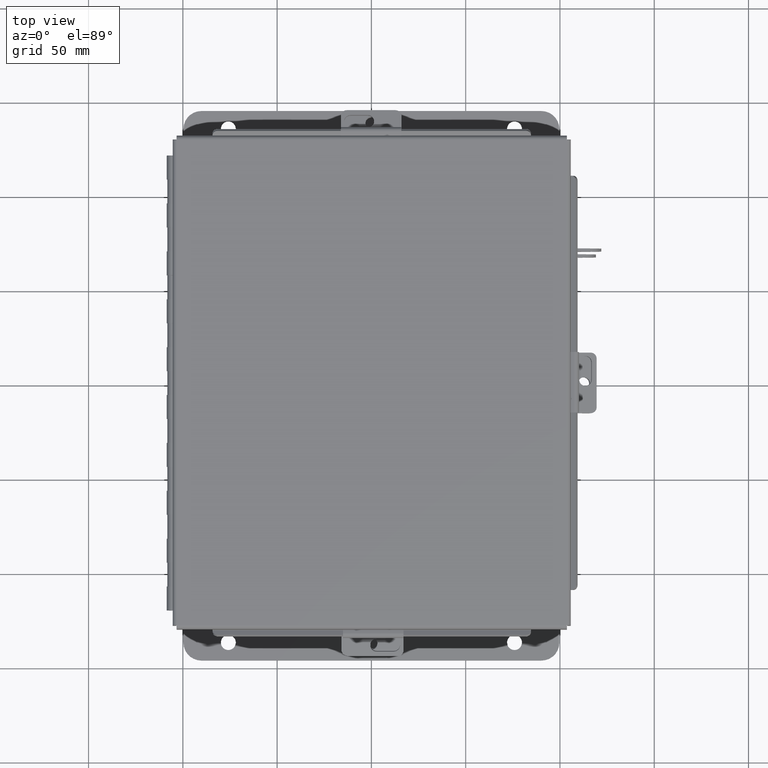
[diagram: clean part render]
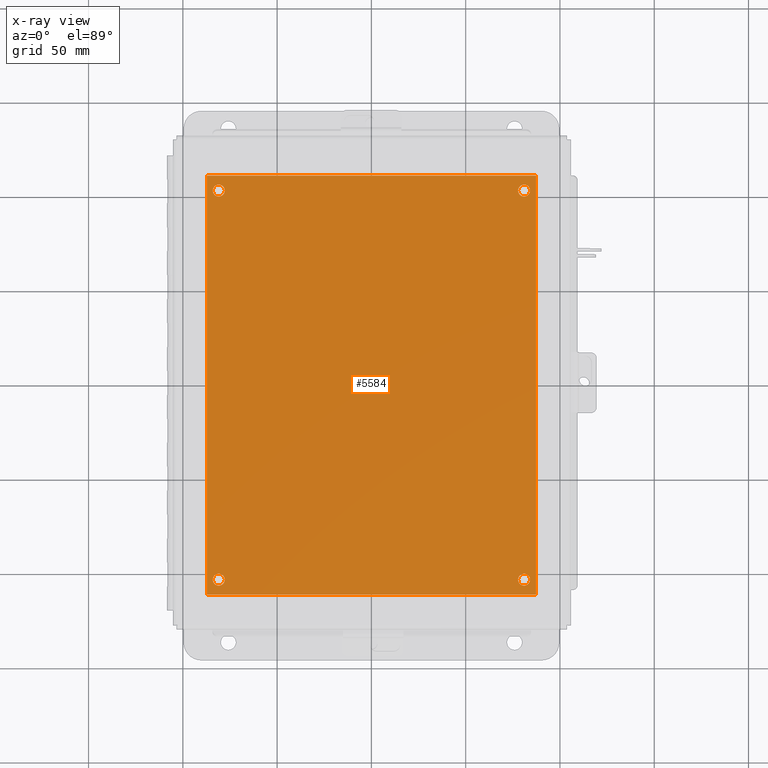
[diagram: x-ray — body ghosted, one internal face saturated and labeled with its STEP entity id]
A machine part, top view, then the same camera in x-ray: the body is ghosted and one INTERNAL B-rep face — a face not visible from any outside direction — is saturated and labeled: STEP entity #5584.
In plain terms, the highlighted planar face has unit normal (0, 0, -1).
Its self-contained STEP definition (entity closure, byte-faithful):
#4 = CARTESIAN_POINT ( 'NONE',  ( 6.750000000000003600, 0.3120000000000020500, -0.07470000000000003000 ) ) ;
#35 = LINE ( 'NONE', #9192, #6841 ) ;
#161 = EDGE_LOOP ( 'NONE', ( #391, #1030 ) ) ;
#181 = ORIENTED_EDGE ( 'NONE', *, *, #4971, .T. ) ;
#237 = ORIENTED_EDGE ( 'NONE', *, *, #12358, .F. ) ;
#391 = ORIENTED_EDGE ( 'NONE', *, *, #5297, .T. ) ;
#422 = DIRECTION ( 'NONE',  ( -0.0000000000000000000, -0.0000000000000000000, 1.000000000000000000 ) ) ;
#569 = DIRECTION ( 'NONE',  ( -1.000000000000000000, 0.0000000000000000000, 0.0000000000000000000 ) ) ;
#661 = LINE ( 'NONE', #6732, #10455 ) ;
#827 = AXIS2_PLACEMENT_3D ( 'NONE', #11289, #3636, #12570 ) ;
#972 = CARTESIAN_POINT ( 'NONE',  ( 6.625000000000001800, 8.438000000000000600, -0.07470000000000003000 ) ) ;
#990 = AXIS2_PLACEMENT_3D ( 'NONE', #11428, #3753, #12701 ) ;
#1002 = LINE ( 'NONE', #11313, #14150 ) ;
#1030 = ORIENTED_EDGE ( 'NONE', *, *, #5215, .T. ) ;
#1213 = VERTEX_POINT ( 'NONE', #13694 ) ;
#1231 = EDGE_CURVE ( 'NONE', #13364, #14865, #16474, .T. ) ;
#1470 = ORIENTED_EDGE ( 'NONE', *, *, #1231, .T. ) ;
#1525 = CARTESIAN_POINT ( 'NONE',  ( 0.0000000000000000000, 0.0000000000000000000, -0.07470000000000003000 ) ) ;
#1537 = DIRECTION ( 'NONE',  ( -1.000000000000000000, -0.0000000000000000000, -0.0000000000000000000 ) ) ;
#1796 = FACE_OUTER_BOUND ( 'NONE', #14748, .T. ) ;
#2169 = CARTESIAN_POINT ( 'NONE',  ( 6.625000000000002700, 0.3120000000000020500, -0.07470000000000003000 ) ) ;
#2461 = ORIENTED_EDGE ( 'NONE', *, *, #15704, .T. ) ;
#2534 = DIRECTION ( 'NONE',  ( -0.0000000000000000000, -0.0000000000000000000, 1.000000000000000000 ) ) ;
#2571 = CARTESIAN_POINT ( 'NONE',  ( 0.1250000000000003300, 8.437999999999998800, -0.07470000000000003000 ) ) ;
#2604 = LINE ( 'NONE', #14141, #15747 ) ;
#3386 = ORIENTED_EDGE ( 'NONE', *, *, #9667, .T. ) ;
#3439 = DIRECTION ( 'NONE',  ( -1.000000000000000000, 0.0000000000000000000, 0.0000000000000000000 ) ) ;
#3450 = CIRCLE ( 'NONE', #827, 0.1250000000000000600 ) ;
#3474 = PLANE ( 'NONE',  #13881 ) ;
#3636 = DIRECTION ( 'NONE',  ( -0.0000000000000000000, -0.0000000000000000000, 1.000000000000000000 ) ) ;
#3694 = EDGE_CURVE ( 'NONE', #5186, #12785, #13194, .T. ) ;
#3753 = DIRECTION ( 'NONE',  ( -0.0000000000000000000, -0.0000000000000000000, 1.000000000000000000 ) ) ;
#3808 = CARTESIAN_POINT ( 'NONE',  ( 0.2500000000000003300, 8.437999999999998800, -0.07470000000000003000 ) ) ;
#4032 = VERTEX_POINT ( 'NONE', #13508 ) ;
#4351 = CARTESIAN_POINT ( 'NONE',  ( 6.625000000000002700, 0.3120000000000020500, -0.07470000000000003000 ) ) ;
#4971 = EDGE_CURVE ( 'NONE', #14865, #13364, #13182, .T. ) ;
#5085 = DIRECTION ( 'NONE',  ( -1.000000000000000000, 0.0000000000000000000, 0.0000000000000000000 ) ) ;
#5154 = EDGE_CURVE ( 'NONE', #6247, #9313, #1002, .T. ) ;
#5166 = FACE_BOUND ( 'NONE', #161, .T. ) ;
#5186 = VERTEX_POINT ( 'NONE', #11370 ) ;
#5209 = VERTEX_POINT ( 'NONE', #16514 ) ;
#5215 = EDGE_CURVE ( 'NONE', #14579, #5209, #14564, .T. ) ;
#5297 = EDGE_CURVE ( 'NONE', #5209, #14579, #5799, .T. ) ;
#5575 = FACE_BOUND ( 'NONE', #7928, .T. ) ;
#5584 = ADVANCED_FACE ( 'NONE', ( #15740, #11986, #5575, #5166, #1796 ), #3474, .T. ) ;
#5738 = CIRCLE ( 'NONE', #990, 0.1250000000000000600 ) ;
#5769 = DIRECTION ( 'NONE',  ( -0.0000000000000000000, -0.0000000000000000000, 1.000000000000000000 ) ) ;
#5799 = CIRCLE ( 'NONE', #7410, 0.1250000000000000000 ) ;
#5880 = VERTEX_POINT ( 'NONE', #8115 ) ;
#5943 = ORIENTED_EDGE ( 'NONE', *, *, #15326, .T. ) ;
#6247 = VERTEX_POINT ( 'NONE', #6256 ) ;
#6256 = CARTESIAN_POINT ( 'NONE',  ( 0.0000000000000000000, 8.750000000000000000, -0.07470000000000003000 ) ) ;
#6264 = ORIENTED_EDGE ( 'NONE', *, *, #5154, .F. ) ;
#6390 = DIRECTION ( 'NONE',  ( -1.000000000000000000, 0.0000000000000000000, 0.0000000000000000000 ) ) ;
#6505 = ORIENTED_EDGE ( 'NONE', *, *, #9404, .F. ) ;
#6732 = CARTESIAN_POINT ( 'NONE',  ( 6.875000000000000000, 0.0000000000000000000, -0.07470000000000003000 ) ) ;
#6841 = VECTOR ( 'NONE', #1537, 39.37007874015748100 ) ;
#7348 = DIRECTION ( 'NONE',  ( -1.000000000000000000, 0.0000000000000000000, -0.0000000000000000000 ) ) ;
#7402 = EDGE_LOOP ( 'NONE', ( #1470, #181 ) ) ;
#7410 = AXIS2_PLACEMENT_3D ( 'NONE', #8080, #422, #9351 ) ;
#7525 = DIRECTION ( 'NONE',  ( -0.0000000000000000000, -1.000000000000000000, -0.0000000000000000000 ) ) ;
#7552 = EDGE_LOOP ( 'NONE', ( #5943, #3386 ) ) ;
#7928 = EDGE_LOOP ( 'NONE', ( #14195, #2461 ) ) ;
#8080 = CARTESIAN_POINT ( 'NONE',  ( 0.2500000000000003300, 8.437999999999998800, -0.07470000000000003000 ) ) ;
#8115 = CARTESIAN_POINT ( 'NONE',  ( 6.875000000000000000, 8.750000000000000000, -0.07470000000000003000 ) ) ;
#8317 = AXIS2_PLACEMENT_3D ( 'NONE', #4351, #2534, #569 ) ;
#8456 = AXIS2_PLACEMENT_3D ( 'NONE', #2169, #11088, #3439 ) ;
#9101 = DIRECTION ( 'NONE',  ( 1.000000000000000000, 0.0000000000000000000, 0.0000000000000000000 ) ) ;
#9192 = CARTESIAN_POINT ( 'NONE',  ( 0.0000000000000000000, 8.750000000000000000, -0.07470000000000003000 ) ) ;
#9313 = VERTEX_POINT ( 'NONE', #1525 ) ;
#9351 = DIRECTION ( 'NONE',  ( -1.000000000000000000, 0.0000000000000000000, 0.0000000000000000000 ) ) ;
#9404 = EDGE_CURVE ( 'NONE', #1213, #5880, #661, .T. ) ;
#9564 = ORIENTED_EDGE ( 'NONE', *, *, #13449, .F. ) ;
#9667 = EDGE_CURVE ( 'NONE', #9939, #4032, #3450, .T. ) ;
#9939 = VERTEX_POINT ( 'NONE', #10721 ) ;
#10447 = DIRECTION ( 'NONE',  ( -0.0000000000000000000, -0.0000000000000000000, 1.000000000000000000 ) ) ;
#10455 = VECTOR ( 'NONE', #13128, 39.37007874015748100 ) ;
#10721 = CARTESIAN_POINT ( 'NONE',  ( 0.1250000000000019200, 0.3120000000000015000, -0.07470000000000003000 ) ) ;
#10944 = CIRCLE ( 'NONE', #11810, 0.1250000000000004400 ) ;
#11088 = DIRECTION ( 'NONE',  ( -0.0000000000000000000, -0.0000000000000000000, 1.000000000000000000 ) ) ;
#11289 = CARTESIAN_POINT ( 'NONE',  ( 0.2500000000000020000, 0.3120000000000015000, -0.07470000000000003000 ) ) ;
#11313 = CARTESIAN_POINT ( 'NONE',  ( 0.0000000000000000000, 0.0000000000000000000, -0.07470000000000003000 ) ) ;
#11370 = CARTESIAN_POINT ( 'NONE',  ( 6.750000000000001800, 8.438000000000000600, -0.07470000000000003000 ) ) ;
#11423 = CARTESIAN_POINT ( 'NONE',  ( 6.500000000000000900, 8.438000000000000600, -0.07470000000000003000 ) ) ;
#11428 = CARTESIAN_POINT ( 'NONE',  ( 0.2500000000000020000, 0.3120000000000015000, -0.07470000000000003000 ) ) ;
#11810 = AXIS2_PLACEMENT_3D ( 'NONE', #13396, #5769, #14670 ) ;
#11986 = FACE_BOUND ( 'NONE', #7402, .T. ) ;
#12358 = EDGE_CURVE ( 'NONE', #5880, #6247, #35, .T. ) ;
#12423 = CARTESIAN_POINT ( 'NONE',  ( 0.0000000000000000000, 0.0000000000000000000, -0.07470000000000003000 ) ) ;
#12570 = DIRECTION ( 'NONE',  ( -1.000000000000000000, 0.0000000000000000000, 0.0000000000000000000 ) ) ;
#12701 = DIRECTION ( 'NONE',  ( -1.000000000000000000, 0.0000000000000000000, 0.0000000000000000000 ) ) ;
#12755 = DIRECTION ( 'NONE',  ( -0.0000000000000000000, -0.0000000000000000000, 1.000000000000000000 ) ) ;
#12785 = VERTEX_POINT ( 'NONE', #11423 ) ;
#13128 = DIRECTION ( 'NONE',  ( 0.0000000000000000000, 1.000000000000000000, 0.0000000000000000000 ) ) ;
#13182 = CIRCLE ( 'NONE', #8456, 0.1250000000000004400 ) ;
#13194 = CIRCLE ( 'NONE', #13432, 0.1250000000000004400 ) ;
#13364 = VERTEX_POINT ( 'NONE', #4 ) ;
#13396 = CARTESIAN_POINT ( 'NONE',  ( 6.625000000000001800, 8.438000000000000600, -0.07470000000000003000 ) ) ;
#13432 = AXIS2_PLACEMENT_3D ( 'NONE', #972, #10447, #6390 ) ;
#13449 = EDGE_CURVE ( 'NONE', #9313, #1213, #2604, .T. ) ;
#13508 = CARTESIAN_POINT ( 'NONE',  ( 0.3750000000000020000, 0.3120000000000015000, -0.07470000000000003000 ) ) ;
#13694 = CARTESIAN_POINT ( 'NONE',  ( 6.875000000000000000, 0.0000000000000000000, -0.07470000000000003000 ) ) ;
#13881 = AXIS2_PLACEMENT_3D ( 'NONE', #12423, #14964, #7348 ) ;
#14141 = CARTESIAN_POINT ( 'NONE',  ( 0.0000000000000000000, 0.0000000000000000000, -0.07470000000000003000 ) ) ;
#14150 = VECTOR ( 'NONE', #7525, 39.37007874015748100 ) ;
#14195 = ORIENTED_EDGE ( 'NONE', *, *, #3694, .T. ) ;
#14431 = CARTESIAN_POINT ( 'NONE',  ( 6.500000000000002700, 0.3120000000000020500, -0.07470000000000003000 ) ) ;
#14564 = CIRCLE ( 'NONE', #16235, 0.1250000000000000000 ) ;
#14579 = VERTEX_POINT ( 'NONE', #2571 ) ;
#14670 = DIRECTION ( 'NONE',  ( -1.000000000000000000, 0.0000000000000000000, 0.0000000000000000000 ) ) ;
#14748 = EDGE_LOOP ( 'NONE', ( #6264, #237, #6505, #9564 ) ) ;
#14865 = VERTEX_POINT ( 'NONE', #14431 ) ;
#14964 = DIRECTION ( 'NONE',  ( 0.0000000000000000000, 0.0000000000000000000, -1.000000000000000000 ) ) ;
#15326 = EDGE_CURVE ( 'NONE', #4032, #9939, #5738, .T. ) ;
#15704 = EDGE_CURVE ( 'NONE', #12785, #5186, #10944, .T. ) ;
#15740 = FACE_BOUND ( 'NONE', #7552, .T. ) ;
#15747 = VECTOR ( 'NONE', #9101, 39.37007874015748100 ) ;
#16235 = AXIS2_PLACEMENT_3D ( 'NONE', #3808, #12755, #5085 ) ;
#16474 = CIRCLE ( 'NONE', #8317, 0.1250000000000004400 ) ;
#16514 = CARTESIAN_POINT ( 'NONE',  ( 0.3750000000000003900, 8.437999999999998800, -0.07470000000000003000 ) ) ;